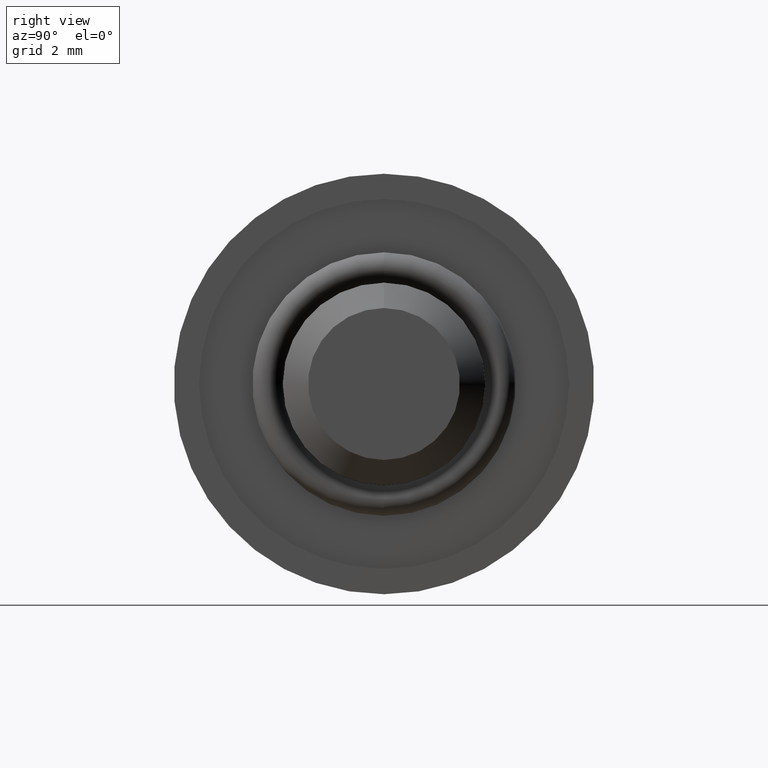
[diagram: clean part render]
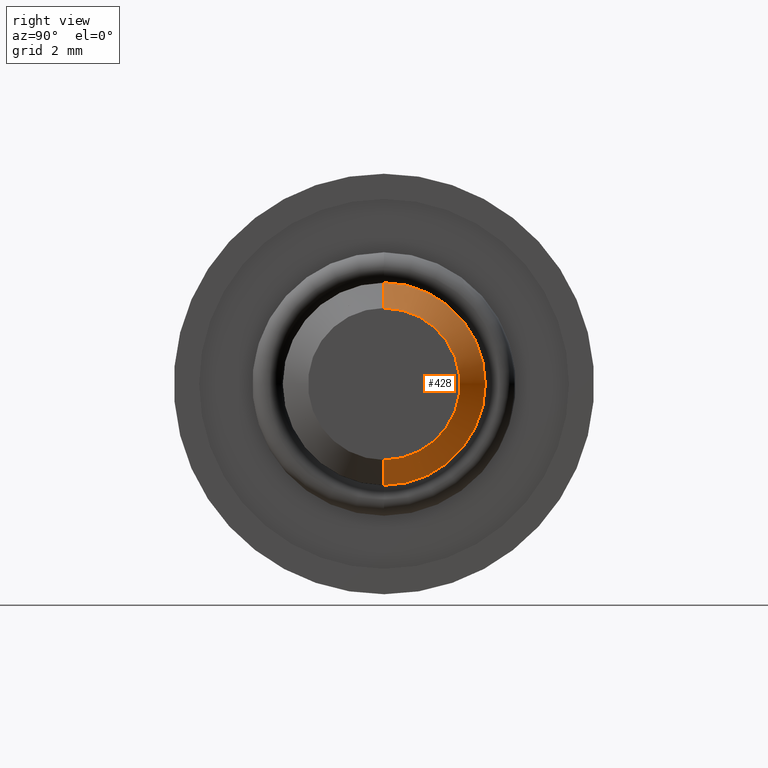
[diagram: same view with one face highlighted and labeled with its STEP entity id]
A machine part, right view. The second image highlights one B-rep face of the part: STEP entity #428.
In plain terms, the highlighted conical surface has half-angle 45 deg.
Its self-contained STEP definition (entity closure, byte-faithful):
#67 = VERTEX_POINT ( 'NONE', #1105 ) ;
#123 = CARTESIAN_POINT ( 'NONE',  ( 6.000000000000000000, 0.0000000000000000000, 0.0000000000000000000 ) ) ;
#124 = EDGE_LOOP ( 'NONE', ( #1012, #334, #870, #665 ) ) ;
#176 = VERTEX_POINT ( 'NONE', #617 ) ;
#227 = EDGE_CURVE ( 'NONE', #597, #67, #874, .T. ) ;
#237 = VECTOR ( 'NONE', #957, 1000.000000000000000 ) ;
#313 = CARTESIAN_POINT ( 'NONE',  ( 6.000000000000000000, 0.0000000000000000000, 1.499999999999999600 ) ) ;
#334 = ORIENTED_EDGE ( 'NONE', *, *, #491, .T. ) ;
#394 = CIRCLE ( 'NONE', #861, 1.499999999999999600 ) ;
#396 = VECTOR ( 'NONE', #889, 1000.000000000000000 ) ;
#425 = EDGE_CURVE ( 'NONE', #911, #597, #532, .T. ) ;
#428 = ADVANCED_FACE ( 'NONE', ( #473 ), #700, .T. ) ;
#473 = FACE_OUTER_BOUND ( 'NONE', #124, .T. ) ;
#491 = EDGE_CURVE ( 'NONE', #176, #67, #1198, .T. ) ;
#532 = LINE ( 'NONE', #313, #237 ) ;
#588 = DIRECTION ( 'NONE',  ( 0.0000000000000000000, 0.0000000000000000000, -1.000000000000000000 ) ) ;
#590 = DIRECTION ( 'NONE',  ( 0.0000000000000000000, 0.0000000000000000000, -1.000000000000000000 ) ) ;
#597 = VERTEX_POINT ( 'NONE', #1211 ) ;
#617 = CARTESIAN_POINT ( 'NONE',  ( 6.000000000000000000, 2.143131898507867800E-016, -1.499999999999999600 ) ) ;
#665 = ORIENTED_EDGE ( 'NONE', *, *, #425, .F. ) ;
#700 = CONICAL_SURFACE ( 'NONE', #920, 1.499999999999999600, 0.7853981633974466100 ) ;
#819 = DIRECTION ( 'NONE',  ( 0.0000000000000000000, 0.0000000000000000000, 1.000000000000000000 ) ) ;
#825 = CARTESIAN_POINT ( 'NONE',  ( 6.000000000000000000, 0.0000000000000000000, 1.499999999999999600 ) ) ;
#861 = AXIS2_PLACEMENT_3D ( 'NONE', #891, #1184, #588 ) ;
#870 = ORIENTED_EDGE ( 'NONE', *, *, #227, .F. ) ;
#874 = CIRCLE ( 'NONE', #1210, 2.000000000000000000 ) ;
#889 = DIRECTION ( 'NONE',  ( -0.7071067811865487900, 8.659560562354918100E-017, -0.7071067811865463500 ) ) ;
#891 = CARTESIAN_POINT ( 'NONE',  ( 6.000000000000000000, 0.0000000000000000000, 0.0000000000000000000 ) ) ;
#911 = VERTEX_POINT ( 'NONE', #825 ) ;
#920 = AXIS2_PLACEMENT_3D ( 'NONE', #123, #1111, #819 ) ;
#957 = DIRECTION ( 'NONE',  ( -0.7071067811865487900, 0.0000000000000000000, 0.7071067811865463500 ) ) ;
#976 = CARTESIAN_POINT ( 'NONE',  ( 6.000000000000000000, 1.836970198721029400E-016, -1.499999999999999600 ) ) ;
#1012 = ORIENTED_EDGE ( 'NONE', *, *, #1154, .F. ) ;
#1070 = CARTESIAN_POINT ( 'NONE',  ( 5.499999999999998200, 0.0000000000000000000, 0.0000000000000000000 ) ) ;
#1105 = CARTESIAN_POINT ( 'NONE',  ( 5.499999999999998200, 2.449293598294706900E-016, -2.000000000000000000 ) ) ;
#1111 = DIRECTION ( 'NONE',  ( -1.000000000000000000, 0.0000000000000000000, 0.0000000000000000000 ) ) ;
#1154 = EDGE_CURVE ( 'NONE', #176, #911, #394, .T. ) ;
#1159 = DIRECTION ( 'NONE',  ( -1.000000000000000000, 0.0000000000000000000, 0.0000000000000000000 ) ) ;
#1184 = DIRECTION ( 'NONE',  ( 1.000000000000000000, 0.0000000000000000000, 0.0000000000000000000 ) ) ;
#1198 = LINE ( 'NONE', #976, #396 ) ;
#1210 = AXIS2_PLACEMENT_3D ( 'NONE', #1070, #1159, #590 ) ;
#1211 = CARTESIAN_POINT ( 'NONE',  ( 5.499999999999998200, 0.0000000000000000000, 2.000000000000000000 ) ) ;